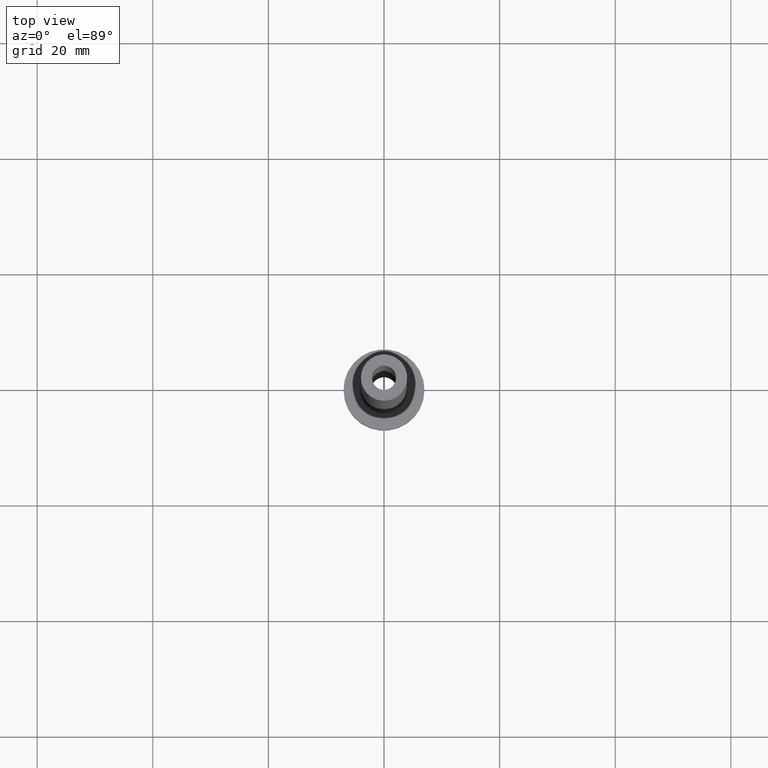
[diagram: clean part render]
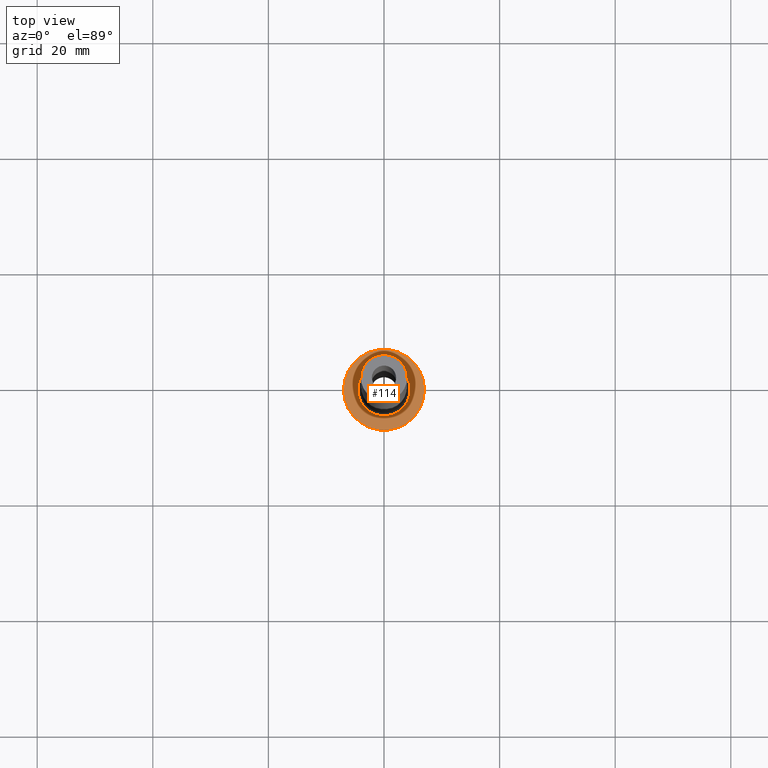
[diagram: same view with one face highlighted and labeled with its STEP entity id]
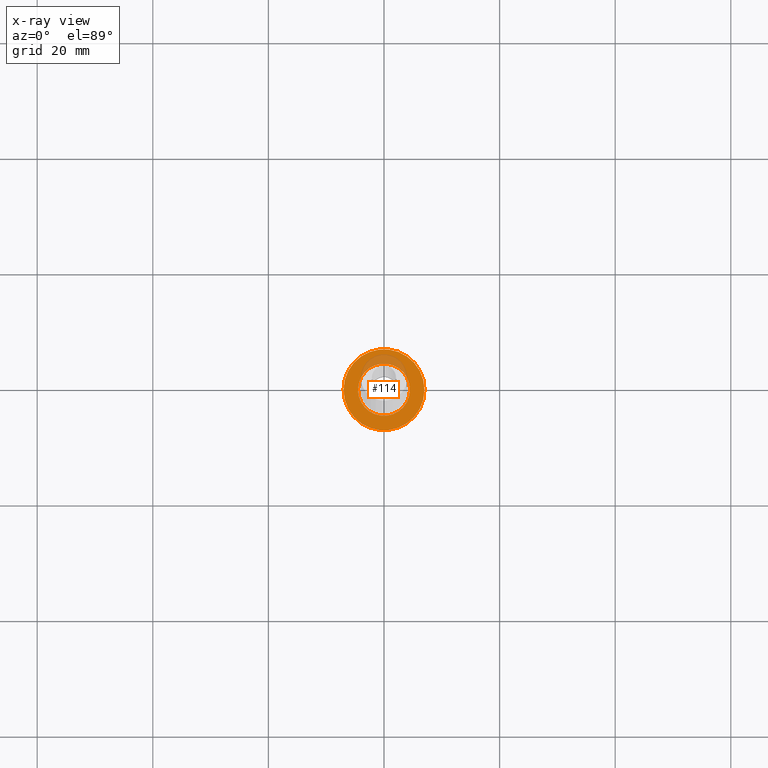
[diagram: x-ray of the same camera — body ghosted, the highlighted face saturated]
A machine part, top view. The second image highlights one B-rep face of the part: STEP entity #114.
The next image is the same camera in x-ray: the body ghosted, the highlighted face saturated — about 13% of this face is hidden behind the body in this view.
In plain terms, the highlighted planar face has unit normal (0, 0, 1).
Its self-contained STEP definition (entity closure, byte-faithful):
#29 = AXIS2_PLACEMENT_3D ( 'NONE', #218, #365, #184 ) ;
#48 = DIRECTION ( 'NONE',  ( 0.000000000000000000, 0.000000000000000000, 1.000000000000000000 ) ) ;
#52 = DIRECTION ( 'NONE',  ( 0.000000000000000000, 0.000000000000000000, 1.000000000000000000 ) ) ;
#76 = AXIS2_PLACEMENT_3D ( 'NONE', #196, #52, #198 ) ;
#96 = VERTEX_POINT ( 'NONE', #307 ) ;
#98 = ORIENTED_EDGE ( 'NONE', *, *, #225, .T. ) ;
#105 = PLANE ( 'NONE',  #259 ) ;
#106 = EDGE_CURVE ( 'NONE', #288, #96, #430, .T. ) ;
#114 = ADVANCED_FACE ( 'NONE', ( #278, #352 ), #105, .T. ) ;
#119 = DIRECTION ( 'NONE',  ( 1.000000000000000000, 0.000000000000000000, 0.000000000000000000 ) ) ;
#145 = DIRECTION ( 'NONE',  ( 1.000000000000000000, 0.000000000000000000, -0.000000000000000000 ) ) ;
#166 = AXIS2_PLACEMENT_3D ( 'NONE', #371, #48, #438 ) ;
#184 = DIRECTION ( 'NONE',  ( 1.000000000000000000, 0.000000000000000000, 0.000000000000000000 ) ) ;
#196 = CARTESIAN_POINT ( 'NONE',  ( 0.000000000000000000, 0.000000000000000000, 5.000000000000000000 ) ) ;
#198 = DIRECTION ( 'NONE',  ( 1.000000000000000000, 0.000000000000000000, 0.000000000000000000 ) ) ;
#202 = DIRECTION ( 'NONE',  ( 0.000000000000000000, 0.000000000000000000, 1.000000000000000000 ) ) ;
#212 = EDGE_CURVE ( 'NONE', #279, #389, #220, .T. ) ;
#214 = CIRCLE ( 'NONE', #76, 7.000000000000000000 ) ;
#218 = CARTESIAN_POINT ( 'NONE',  ( 0.000000000000000000, 0.000000000000000000, 5.000000000000000000 ) ) ;
#220 = CIRCLE ( 'NONE', #29, 4.500000000000000888 ) ;
#225 = EDGE_CURVE ( 'NONE', #389, #279, #366, .T. ) ;
#227 = ORIENTED_EDGE ( 'NONE', *, *, #212, .T. ) ;
#243 = ORIENTED_EDGE ( 'NONE', *, *, #405, .T. ) ;
#259 = AXIS2_PLACEMENT_3D ( 'NONE', #316, #202, #145 ) ;
#278 = FACE_BOUND ( 'NONE', #383, .T. ) ;
#279 = VERTEX_POINT ( 'NONE', #397 ) ;
#288 = VERTEX_POINT ( 'NONE', #314 ) ;
#301 = CARTESIAN_POINT ( 'NONE',  ( 0.000000000000000000, 0.000000000000000000, 5.000000000000000000 ) ) ;
#302 = ORIENTED_EDGE ( 'NONE', *, *, #106, .T. ) ;
#307 = CARTESIAN_POINT ( 'NONE',  ( 7.000000000000000000, 8.572527594031473190E-16, 5.000000000000000000 ) ) ;
#314 = CARTESIAN_POINT ( 'NONE',  ( -7.000000000000000000, 0.000000000000000000, 5.000000000000000000 ) ) ;
#316 = CARTESIAN_POINT ( 'NONE',  ( 0.000000000000000000, 0.000000000000000000, 5.000000000000000000 ) ) ;
#352 = FACE_OUTER_BOUND ( 'NONE', #433, .T. ) ;
#365 = DIRECTION ( 'NONE',  ( -0.000000000000000000, -0.000000000000000000, -1.000000000000000000 ) ) ;
#366 = CIRCLE ( 'NONE', #443, 4.500000000000000888 ) ;
#371 = CARTESIAN_POINT ( 'NONE',  ( 0.000000000000000000, 0.000000000000000000, 5.000000000000000000 ) ) ;
#378 = CARTESIAN_POINT ( 'NONE',  ( 4.500000000000000888, 0.000000000000000000, 5.000000000000002665 ) ) ;
#383 = EDGE_LOOP ( 'NONE', ( #98, #227 ) ) ;
#389 = VERTEX_POINT ( 'NONE', #378 ) ;
#397 = CARTESIAN_POINT ( 'NONE',  ( -4.500000000000000888, 5.510910596163088569E-16, 5.000000000000002665 ) ) ;
#405 = EDGE_CURVE ( 'NONE', #96, #288, #214, .T. ) ;
#426 = DIRECTION ( 'NONE',  ( -0.000000000000000000, -0.000000000000000000, -1.000000000000000000 ) ) ;
#430 = CIRCLE ( 'NONE', #166, 7.000000000000000000 ) ;
#433 = EDGE_LOOP ( 'NONE', ( #302, #243 ) ) ;
#438 = DIRECTION ( 'NONE',  ( 1.000000000000000000, 0.000000000000000000, 0.000000000000000000 ) ) ;
#443 = AXIS2_PLACEMENT_3D ( 'NONE', #301, #426, #119 ) ;